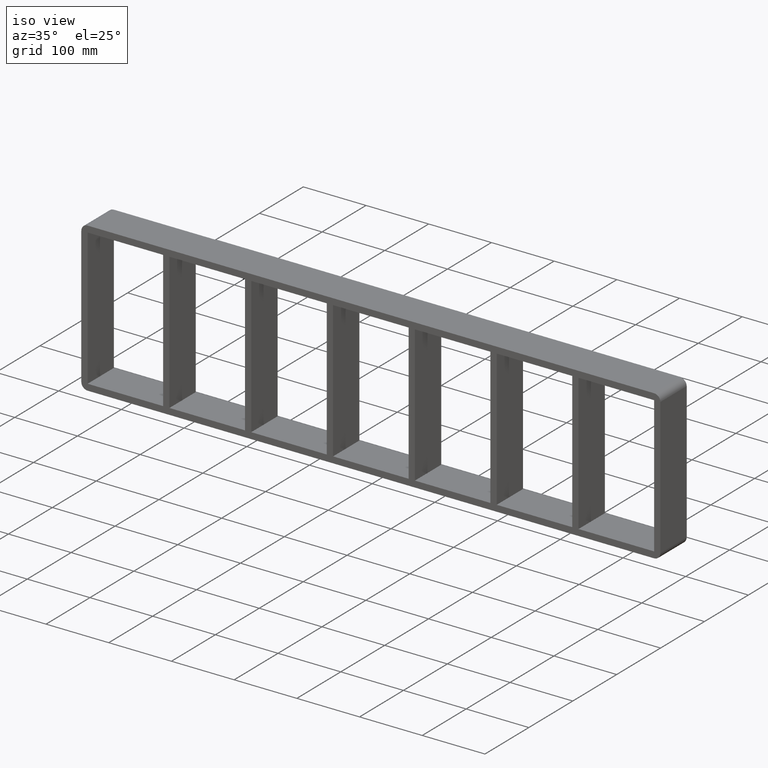
[diagram: clean part render]
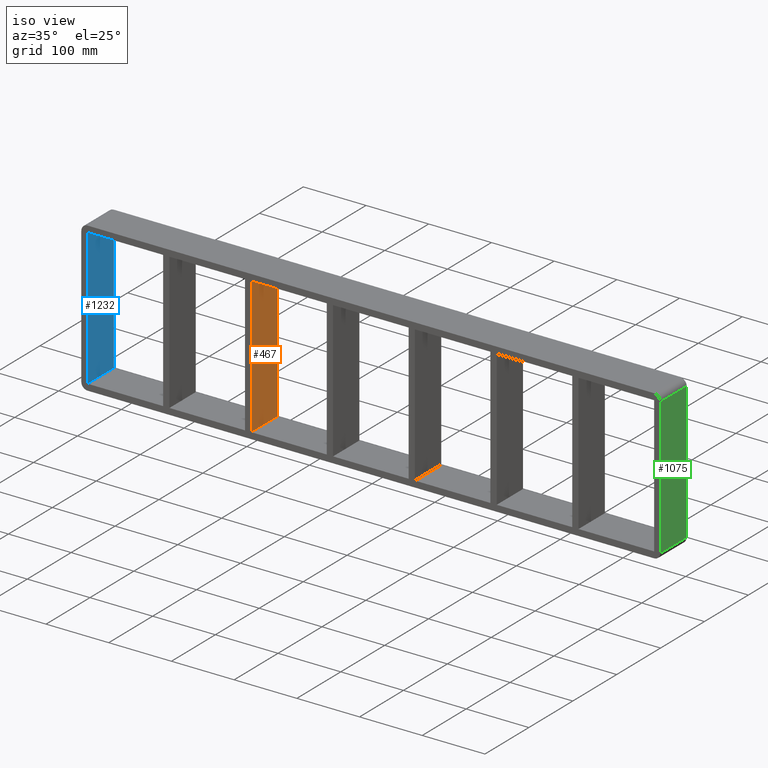
[diagram: same view with three faces highlighted in distinct colors, each labeled with its STEP entity id]
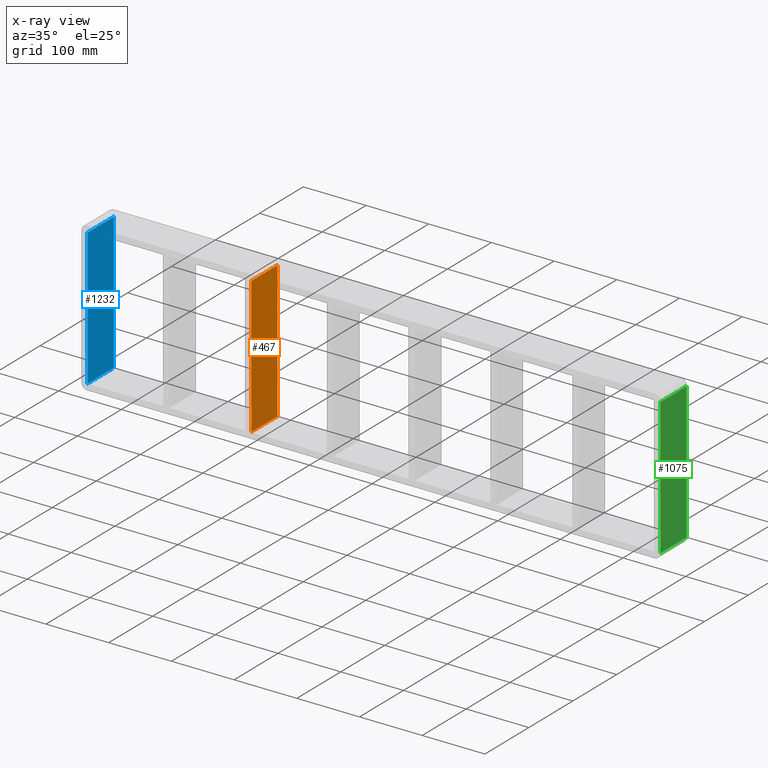
[diagram: x-ray of the same camera — body ghosted, the three highlighted faces saturated]
A machine part, iso view with three faces highlighted in distinct colors.
The next image is the same camera in x-ray (body ghosted, the three faces saturated) — at least one of them is partly hidden behind the body in this view.
Their STEP definitions:

[orange] entity #467 — the highlighted planar face has unit normal (1, 0, 0).
#428=CARTESIAN_POINT('',(-190.75,-3.0,108.99999999999997));
#429=DIRECTION('',(1.0,0.0,0.0));
#430=DIRECTION('',(0.0,0.0,-1.0));
#431=AXIS2_PLACEMENT_3D('',#428,#429,#430);
#432=PLANE('',#431);
#433=CARTESIAN_POINT('',(-190.75,-3.0,108.99999999999997));
#434=VERTEX_POINT('',#433);
#435=CARTESIAN_POINT('',(-190.75,-3.0,-108.9999999999842));
#436=VERTEX_POINT('',#435);
#437=CARTESIAN_POINT('',(-190.75,-3.0,108.99999999999997));
#438=DIRECTION('',(0.0,0.0,-1.0));
#439=VECTOR('',#438,217.99999999998417);
#440=LINE('',#437,#439);
#441=EDGE_CURVE('',#434,#436,#440,.T.);
#442=ORIENTED_EDGE('',*,*,#441,.T.);
#443=CARTESIAN_POINT('',(-190.75,57.0,-108.9999999999842));
#444=VERTEX_POINT('',#443);
#445=CARTESIAN_POINT('',(-190.75000000000003,57.000000000000007,-109.0));
#446=DIRECTION('',(0.0,-1.0,0.0));
#447=VECTOR('',#446,60.000000000000007);
#448=LINE('',#445,#447);
#449=EDGE_CURVE('',#444,#436,#448,.T.);
#450=ORIENTED_EDGE('',*,*,#449,.F.);
#451=CARTESIAN_POINT('',(-190.75,57.0,108.99999999999997));
#452=VERTEX_POINT('',#451);
#453=CARTESIAN_POINT('',(-190.75,57.0,108.99999999999997));
#454=DIRECTION('',(0.0,0.0,-1.0));
#455=VECTOR('',#454,217.99999999998417);
#456=LINE('',#453,#455);
#457=EDGE_CURVE('',#452,#444,#456,.T.);
#458=ORIENTED_EDGE('',*,*,#457,.F.);
#459=CARTESIAN_POINT('',(-190.75000000000003,-3.0,108.99999999999999));
#460=DIRECTION('',(0.0,1.0,0.0));
#461=VECTOR('',#460,60.000000000000007);
#462=LINE('',#459,#461);
#463=EDGE_CURVE('',#434,#452,#462,.T.);
#464=ORIENTED_EDGE('',*,*,#463,.F.);
#465=EDGE_LOOP('',(#442,#450,#458,#464));
#466=FACE_OUTER_BOUND('',#465,.T.);
#467=ADVANCED_FACE('',(#466),#432,.T.);

[blue] entity #1232 — the highlighted planar face has unit normal (-1, 0, 0).
#836=CARTESIAN_POINT('',(-451.75,57.0,-109.0));
#837=VERTEX_POINT('',#836);
#844=CARTESIAN_POINT('',(-451.75,-3.0,-109.0));
#845=VERTEX_POINT('',#844);
#846=CARTESIAN_POINT('',(-451.75,-3.0,-109.0));
#847=DIRECTION('',(0.0,1.0,0.0));
#848=VECTOR('',#847,60.0);
#849=LINE('',#846,#848);
#850=EDGE_CURVE('',#845,#837,#849,.T.);
#867=CARTESIAN_POINT('',(-451.75,-3.0,108.99999999999997));
#868=VERTEX_POINT('',#867);
#875=CARTESIAN_POINT('',(-451.75,57.0,108.99999999999997));
#876=VERTEX_POINT('',#875);
#877=CARTESIAN_POINT('',(-451.75,-3.0,108.99999999999999));
#878=DIRECTION('',(0.0,1.0,0.0));
#879=VECTOR('',#878,60.0);
#880=LINE('',#877,#879);
#881=EDGE_CURVE('',#868,#876,#880,.T.);
#1030=CARTESIAN_POINT('',(-451.75,-3.0,-109.0));
#1031=DIRECTION('',(0.0,0.0,1.0));
#1032=VECTOR('',#1031,217.99999999999994);
#1033=LINE('',#1030,#1032);
#1034=EDGE_CURVE('',#845,#868,#1033,.T.);
#1216=CARTESIAN_POINT('',(-451.75,0.0,-109.0));
#1217=DIRECTION('',(-1.0,0.0,0.0));
#1218=DIRECTION('',(0.0,0.0,1.0));
#1219=AXIS2_PLACEMENT_3D('',#1216,#1217,#1218);
#1220=PLANE('',#1219);
#1221=ORIENTED_EDGE('',*,*,#881,.F.);
#1222=ORIENTED_EDGE('',*,*,#1034,.F.);
#1223=ORIENTED_EDGE('',*,*,#850,.T.);
#1224=CARTESIAN_POINT('',(-451.75,57.0,108.99999999999996));
#1225=DIRECTION('',(0.0,0.0,-1.0));
#1226=VECTOR('',#1225,217.99999999999994);
#1227=LINE('',#1224,#1226);
#1228=EDGE_CURVE('',#876,#837,#1227,.T.);
#1229=ORIENTED_EDGE('',*,*,#1228,.F.);
#1230=EDGE_LOOP('',(#1221,#1222,#1223,#1229));
#1231=FACE_OUTER_BOUND('',#1230,.T.);
#1232=ADVANCED_FACE('',(#1231),#1220,.F.);

[green] entity #1075 — the highlighted planar face has unit normal (1, 0, 0).
#899=CARTESIAN_POINT('',(461.75000000000011,57.0,-109.00000000000003));
#900=VERTEX_POINT('',#899);
#908=CARTESIAN_POINT('',(461.75000000000011,-3.0,-109.00000000000003));
#909=VERTEX_POINT('',#908);
#910=CARTESIAN_POINT('',(461.75000000000011,57.0,-109.00000000000003));
#911=DIRECTION('',(0.0,-1.0,0.0));
#912=VECTOR('',#911,60.0);
#913=LINE('',#910,#912);
#914=EDGE_CURVE('',#900,#909,#913,.T.);
#940=CARTESIAN_POINT('',(461.75000000000011,-3.0,108.99999999999999));
#941=VERTEX_POINT('',#940);
#942=CARTESIAN_POINT('',(461.75000000000011,-3.0,-109.00000000000001));
#943=DIRECTION('',(0.0,0.0,1.0));
#944=VECTOR('',#943,218.0);
#945=LINE('',#942,#944);
#946=EDGE_CURVE('',#909,#941,#945,.T.);
#1052=CARTESIAN_POINT('',(461.75000000000011,0.0,118.99999999999999));
#1053=DIRECTION('',(1.0,0.0,0.0));
#1054=DIRECTION('',(0.0,0.0,-1.0));
#1055=AXIS2_PLACEMENT_3D('',#1052,#1053,#1054);
#1056=PLANE('',#1055);
#1057=ORIENTED_EDGE('',*,*,#914,.F.);
#1058=CARTESIAN_POINT('',(461.75000000000011,57.0,108.99999999999999));
#1059=VERTEX_POINT('',#1058);
#1060=CARTESIAN_POINT('',(461.75000000000011,57.0,108.99999999999999));
#1061=DIRECTION('',(0.0,0.0,-1.0));
#1062=VECTOR('',#1061,218.0);
#1063=LINE('',#1060,#1062);
#1064=EDGE_CURVE('',#1059,#900,#1063,.T.);
#1065=ORIENTED_EDGE('',*,*,#1064,.F.);
#1066=CARTESIAN_POINT('',(461.75000000000011,-3.0,108.99999999999999));
#1067=DIRECTION('',(0.0,1.0,0.0));
#1068=VECTOR('',#1067,60.0);
#1069=LINE('',#1066,#1068);
#1070=EDGE_CURVE('',#941,#1059,#1069,.T.);
#1071=ORIENTED_EDGE('',*,*,#1070,.F.);
#1072=ORIENTED_EDGE('',*,*,#946,.F.);
#1073=EDGE_LOOP('',(#1057,#1065,#1071,#1072));
#1074=FACE_OUTER_BOUND('',#1073,.T.);
#1075=ADVANCED_FACE('',(#1074),#1056,.T.);